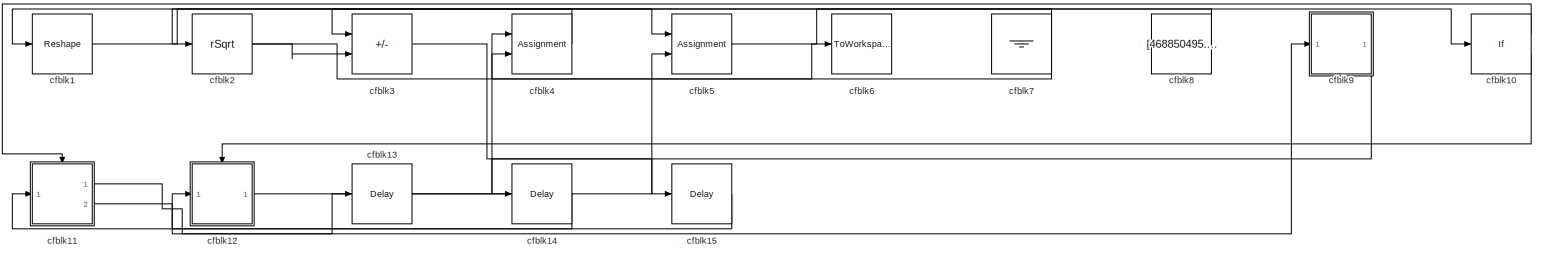
[diagram: root canvas - part 1/1, most of the canvas]
MODEL slx_0ac6c3cea6ad
KIND model
CONFIG AbsTol = auto
CONFIG EnableMultiTasking = off
CONFIG FixedStep = auto
CONFIG MaxStep = auto
CONFIG MinStep = auto
CONFIG RelTol = 1e-3
CONFIG SampleTimeConstraint = Unconstrained
CONFIG SolverName = VariableStepAuto
CONFIG StartTime = 0.0
CONFIG StopTime = 10.0
BLOCK [Reshape] cfblk1
  Ports = [1, 1]
BLOCK [If] cfblk10
  IfExpression = u1 >= 0
  Ports = [1, 2]
  SampleTime = 1
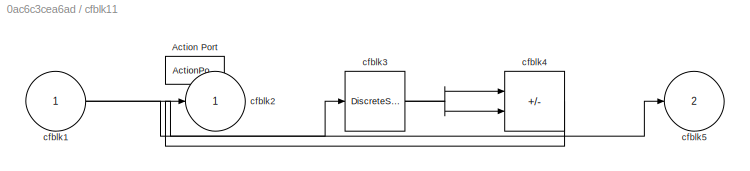
BLOCK [SubSystem] cfblk11
  Ports = [1, 2, 0, 0, 0, 0, 0, 1]
  RequestExecContextInheritance = off
  TreatAsAtomicUnit = on
BLOCK [ActionPort] cfblk11/Action Port
  ActionPortLabel = if(u1 >= 0)
BLOCK [Inport] cfblk11/cfblk1
BLOCK [Outport] cfblk11/cfblk2
BLOCK [DiscreteStateSpace] cfblk11/cfblk3
  SampleTime = -1
BLOCK [Sum] cfblk11/cfblk4
  IconShape = rectangular
  Inputs = --
  Ports = [2, 1]
BLOCK [Outport] cfblk11/cfblk5
  Port = 2
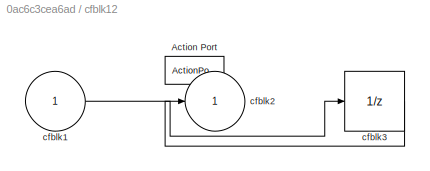
BLOCK [SubSystem] cfblk12
  Ports = [1, 1, 0, 0, 0, 0, 0, 1]
  RequestExecContextInheritance = off
  TreatAsAtomicUnit = on
BLOCK [ActionPort] cfblk12/Action Port
  ActionPortLabel = else
BLOCK [Inport] cfblk12/cfblk1
BLOCK [Outport] cfblk12/cfblk2
BLOCK [UnitDelay] cfblk12/cfblk3
  HasFrameUpgradeWarning = on
  SampleTime = -1
BLOCK [Delay] cfblk13
  InputPortMap = u0
  Ports = [1, 1]
  SampleTime = 1
BLOCK [Delay] cfblk14
  InputPortMap = u0
  Ports = [1, 1]
  SampleTime = 1
BLOCK [Delay] cfblk15
  InputPortMap = u0
  Ports = [1, 1]
  SampleTime = 1
BLOCK [Sqrt] cfblk2
  AlgorithmType = Newton-Raphson
  Operator = rSqrt
BLOCK [Sum] cfblk3
  IconShape = rectangular
  Inputs = +-
  Ports = [2, 1]
BLOCK [Assignment] cfblk4
  DiagnosticForDimensions = Warning
  IndexOptions = Index vector (dialog)
  Indices = 1
  OutputSizes = 1
  Ports = [2, 1]
BLOCK [Assignment] cfblk5
  DiagnosticForDimensions = Warning
  IndexOptions = Index vector (dialog)
  Indices = 1
  OutputSizes = 1
  Ports = [2, 1]
BLOCK [ToWorkspace] cfblk6
  FixptAsFi = on
  MaxDataPoints = inf
  Ports = [1]
  SampleTime = -1
  SaveFormat = Timeseries
  VariableName = prrbxiw
BLOCK [Ground] cfblk7
BLOCK [Constant] cfblk8
  SampleTime = 1
  Value = [468850495.428076]
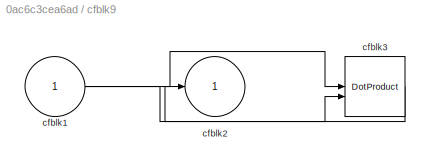
BLOCK [SubSystem] cfblk9
  Ports = [1, 1]
  RequestExecContextInheritance = off
BLOCK [Inport] cfblk9/cfblk1
BLOCK [Outport] cfblk9/cfblk2
BLOCK [DotProduct] cfblk9/cfblk3
  OutDataTypeStr = Inherit: Inherit via internal rule
LINE cfblk10:1 -> cfblk11:ifaction
LINE cfblk10:2 -> cfblk12:ifaction
NET cfblk11/cfblk1:1 -> cfblk11/cfblk3:1, cfblk11/cfblk5:1
NET cfblk11/cfblk3:1 -> cfblk11/cfblk4:1, cfblk11/cfblk4:2
LINE cfblk11/cfblk4:1 -> cfblk11/cfblk2:1
LINE cfblk11:1 -> cfblk13:1
LINE cfblk11:2 -> cfblk9:1
LINE cfblk12/cfblk1:1 -> cfblk12/cfblk3:1
LINE cfblk12/cfblk3:1 -> cfblk12/cfblk2:1
LINE cfblk12:1 -> cfblk4:1
LINE cfblk13:1 -> cfblk5:2
LINE cfblk14:1 -> cfblk11:1
LINE cfblk15:1 -> cfblk12:1
LINE cfblk1:1 -> cfblk5:1
NET cfblk2:1 -> cfblk3:2, cfblk6:1
LINE cfblk3:1 -> cfblk15:1
LINE cfblk4:1 -> cfblk2:1
LINE cfblk5:1 -> cfblk10:1
NET cfblk7:1 -> cfblk1:1, cfblk4:2
LINE cfblk8:1 -> cfblk3:1
NET cfblk9/cfblk1:1 -> cfblk9/cfblk3:1, cfblk9/cfblk3:2
LINE cfblk9/cfblk3:1 -> cfblk9/cfblk2:1
LINE cfblk9:1 -> cfblk14:1
note: NET lines group one-source signal fan-out (src -> all destinations, sorted); 1:1 wires keep LINE
